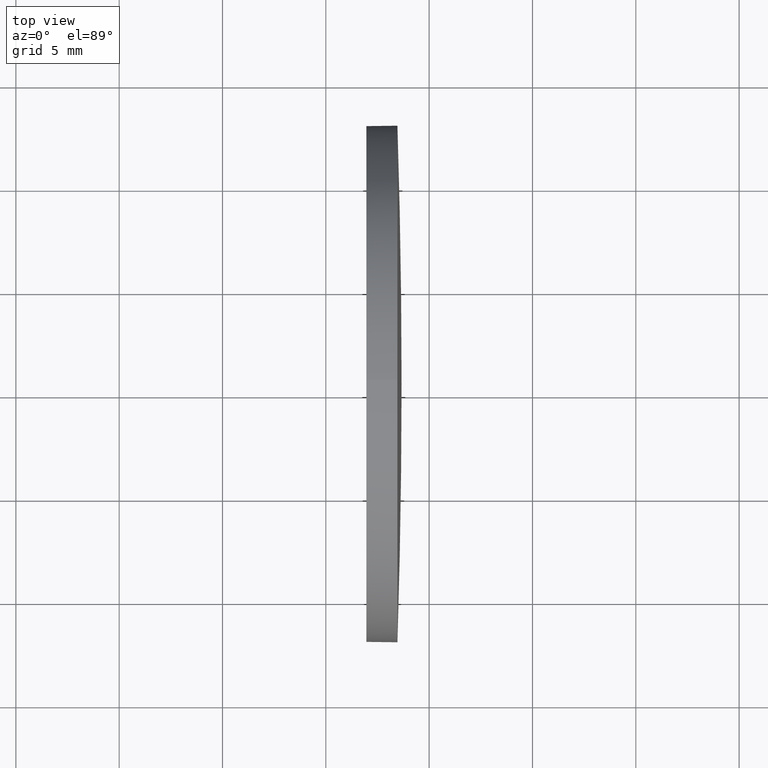
[diagram: clean part render]
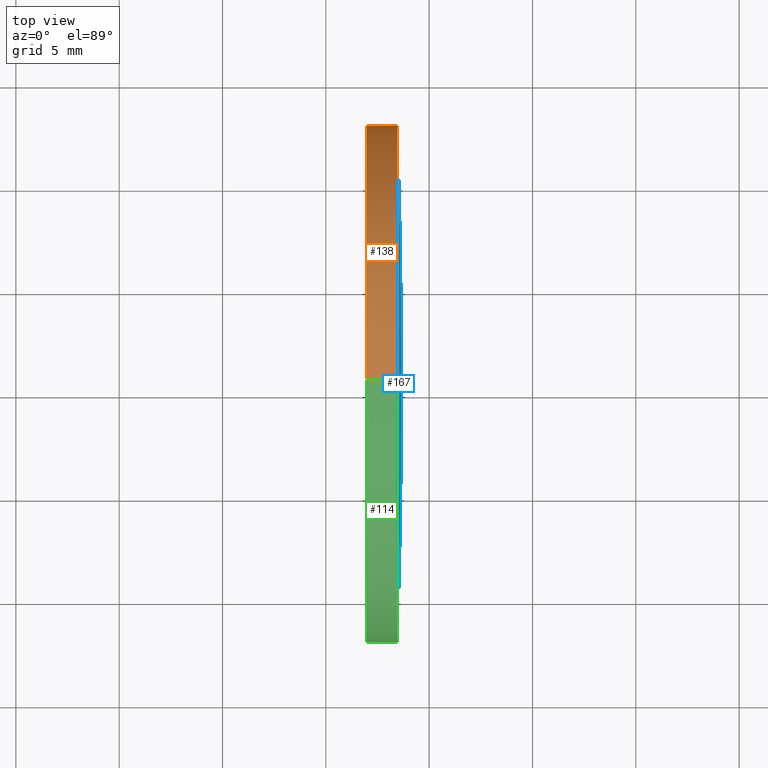
[diagram: same view with three faces highlighted in distinct colors, each labeled with its STEP entity id]
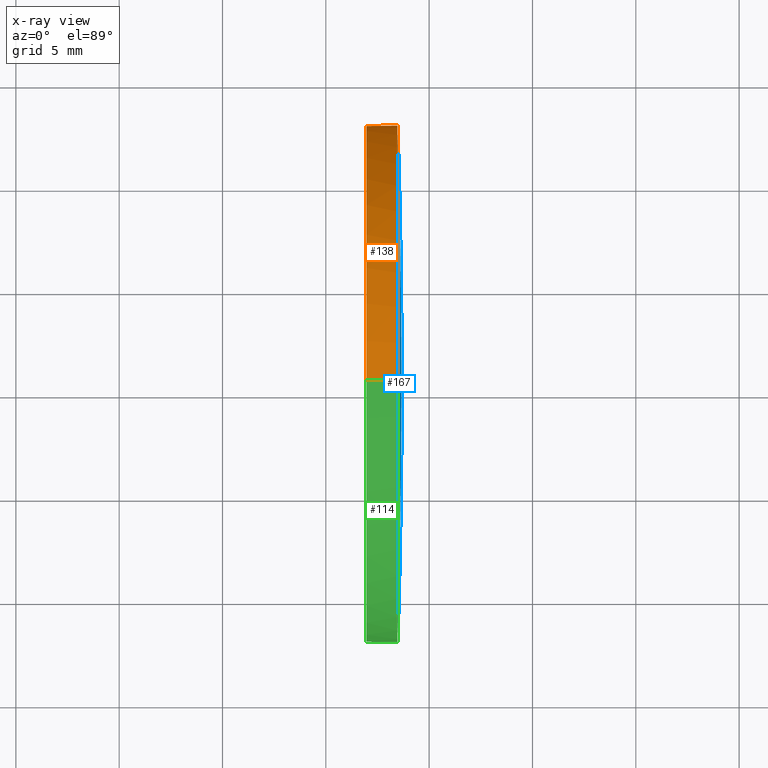
[diagram: x-ray of the same camera — body ghosted, the three highlighted faces saturated]
A machine part, top view with three faces highlighted in distinct colors.
The next image is the same camera in x-ray (body ghosted, the three faces saturated) — at least one of them is partly hidden behind the body in this view.
Their STEP definitions:

[orange] entity #138 — the highlighted cylindrical surface (partial cylindrical patch) has radius 12.5 mm, axis along (-1, -0, -0).
#2 = VERTEX_POINT ( 'NONE', #161 ) ;
#3 = CARTESIAN_POINT ( 'NONE',  ( 468.4651575666903200, 120.4458645264297700, -12.50000000000001100 ) ) ;
#11 = VECTOR ( 'NONE', #105, 1000.000000000000000 ) ;
#13 = ORIENTED_EDGE ( 'NONE', *, *, #106, .T. ) ;
#14 = AXIS2_PLACEMENT_3D ( 'NONE', #113, #126, #139 ) ;
#28 = AXIS2_PLACEMENT_3D ( 'NONE', #183, #120, #103 ) ;
#30 = VERTEX_POINT ( 'NONE', #3 ) ;
#36 = VERTEX_POINT ( 'NONE', #38 ) ;
#37 = DIRECTION ( 'NONE',  ( 0.0000000000000000000, 0.0000000000000000000, 1.000000000000000000 ) ) ;
#38 = CARTESIAN_POINT ( 'NONE',  ( 466.9651575666903200, 120.4458645264297700, 12.50000000000001100 ) ) ;
#40 = CARTESIAN_POINT ( 'NONE',  ( 464.5995416639293600, 120.4458645264297700, -12.50000000000001100 ) ) ;
#41 = EDGE_CURVE ( 'NONE', #170, #2, #86, .T. ) ;
#43 = DIRECTION ( 'NONE',  ( -1.000000000000000000, -0.0000000000000000000, -0.0000000000000000000 ) ) ;
#47 = EDGE_CURVE ( 'NONE', #170, #36, #110, .T. ) ;
#48 = AXIS2_PLACEMENT_3D ( 'NONE', #54, #127, #37 ) ;
#49 = EDGE_CURVE ( 'NONE', #36, #150, #97, .T. ) ;
#54 = CARTESIAN_POINT ( 'NONE',  ( 466.9651575666903200, 120.4458645264297700, 0.0000000000000000000 ) ) ;
#55 = DIRECTION ( 'NONE',  ( -1.000000000000000000, -0.0000000000000000000, -0.0000000000000000000 ) ) ;
#57 = CARTESIAN_POINT ( 'NONE',  ( 464.5995416639293600, 120.4458645264297700, 12.50000000000001100 ) ) ;
#69 = AXIS2_PLACEMENT_3D ( 'NONE', #104, #43, #180 ) ;
#80 = FACE_OUTER_BOUND ( 'NONE', #169, .T. ) ;
#81 = EDGE_CURVE ( 'NONE', #30, #150, #115, .T. ) ;
#86 = CIRCLE ( 'NONE', #14, 12.50000000000001100 ) ;
#91 = ORIENTED_EDGE ( 'NONE', *, *, #81, .T. ) ;
#97 = CIRCLE ( 'NONE', #48, 12.50000000000001100 ) ;
#103 = DIRECTION ( 'NONE',  ( 0.0000000000000000000, 0.0000000000000000000, 1.000000000000000000 ) ) ;
#104 = CARTESIAN_POINT ( 'NONE',  ( 464.5995416639293600, 120.4458645264297700, 0.0000000000000000000 ) ) ;
#105 = DIRECTION ( 'NONE',  ( -1.000000000000000000, -0.0000000000000000000, -0.0000000000000000000 ) ) ;
#106 = EDGE_CURVE ( 'NONE', #2, #30, #147, .T. ) ;
#110 = LINE ( 'NONE', #57, #155 ) ;
#113 = CARTESIAN_POINT ( 'NONE',  ( 468.4651575666903200, 120.4458645264297700, 0.0000000000000000000 ) ) ;
#115 = LINE ( 'NONE', #40, #11 ) ;
#120 = DIRECTION ( 'NONE',  ( -1.000000000000000000, -0.0000000000000000000, -0.0000000000000000000 ) ) ;
#126 = DIRECTION ( 'NONE',  ( -1.000000000000000000, -0.0000000000000000000, -0.0000000000000000000 ) ) ;
#127 = DIRECTION ( 'NONE',  ( -1.000000000000000000, -0.0000000000000000000, -0.0000000000000000000 ) ) ;
#136 = ORIENTED_EDGE ( 'NONE', *, *, #47, .F. ) ;
#137 = CYLINDRICAL_SURFACE ( 'NONE', #69, 12.50000000000001100 ) ;
#138 = ADVANCED_FACE ( 'NONE', ( #80 ), #137, .T. ) ;
#139 = DIRECTION ( 'NONE',  ( 0.0000000000000000000, 0.0000000000000000000, 1.000000000000000000 ) ) ;
#147 = CIRCLE ( 'NONE', #28, 12.50000000000001100 ) ;
#148 = ORIENTED_EDGE ( 'NONE', *, *, #41, .T. ) ;
#150 = VERTEX_POINT ( 'NONE', #166 ) ;
#155 = VECTOR ( 'NONE', #55, 1000.000000000000000 ) ;
#157 = ORIENTED_EDGE ( 'NONE', *, *, #49, .F. ) ;
#161 = CARTESIAN_POINT ( 'NONE',  ( 468.4651575666903800, 132.9458645264287500, 0.0000000000000000000 ) ) ;
#166 = CARTESIAN_POINT ( 'NONE',  ( 466.9651575666903200, 120.4458645264297700, -12.50000000000001100 ) ) ;
#169 = EDGE_LOOP ( 'NONE', ( #13, #91, #157, #136, #148 ) ) ;
#170 = VERTEX_POINT ( 'NONE', #181 ) ;
#180 = DIRECTION ( 'NONE',  ( 0.0000000000000000000, 0.0000000000000000000, 1.000000000000000000 ) ) ;
#181 = CARTESIAN_POINT ( 'NONE',  ( 468.4651575666903200, 120.4458645264297700, 12.50000000000001100 ) ) ;
#183 = CARTESIAN_POINT ( 'NONE',  ( 468.4651575666903200, 120.4458645264297700, 0.0000000000000000000 ) ) ;

[blue] entity #167 — the highlighted spherical surface has radius 390.725 mm.
#2 = VERTEX_POINT ( 'NONE', #161 ) ;
#6 = AXIS2_PLACEMENT_3D ( 'NONE', #62, #8, #90 ) ;
#8 = DIRECTION ( 'NONE',  ( -0.0000000000000000000, 0.0000000000000000000, -1.000000000000000000 ) ) ;
#14 = AXIS2_PLACEMENT_3D ( 'NONE', #113, #126, #139 ) ;
#18 = DIRECTION ( 'NONE',  ( -1.000000000000000000, -0.0000000000000000000, -0.0000000000000000000 ) ) ;
#19 = EDGE_CURVE ( 'NONE', #29, #170, #83, .T. ) ;
#29 = VERTEX_POINT ( 'NONE', #112 ) ;
#32 = ORIENTED_EDGE ( 'NONE', *, *, #41, .F. ) ;
#35 = CIRCLE ( 'NONE', #111, 390.7249999999944500 ) ;
#39 = DIRECTION ( 'NONE',  ( -0.0000000000000000000, 0.0000000000000000000, 1.000000000000000000 ) ) ;
#41 = EDGE_CURVE ( 'NONE', #170, #2, #86, .T. ) ;
#45 = AXIS2_PLACEMENT_3D ( 'NONE', #128, #39, #132 ) ;
#52 = EDGE_CURVE ( 'NONE', #108, #29, #35, .T. ) ;
#56 = ORIENTED_EDGE ( 'NONE', *, *, #87, .T. ) ;
#62 = CARTESIAN_POINT ( 'NONE',  ( 77.94015756669587300, 120.4458645264289900, 0.0000000000000000000 ) ) ;
#72 = DIRECTION ( 'NONE',  ( 0.0000000000000000000, 1.224646799147353200E-016, -1.000000000000000000 ) ) ;
#75 = CIRCLE ( 'NONE', #45, 390.7249999999944500 ) ;
#76 = DIRECTION ( 'NONE',  ( 0.0000000000000000000, 1.000000000000000000, 1.224646799147353200E-016 ) ) ;
#78 = CARTESIAN_POINT ( 'NONE',  ( 468.6651575666903100, 120.4458645264290200, 0.0000000000000000000 ) ) ;
#83 = CIRCLE ( 'NONE', #96, 12.50000000000001100 ) ;
#86 = CIRCLE ( 'NONE', #14, 12.50000000000001100 ) ;
#87 = EDGE_CURVE ( 'NONE', #108, #2, #75, .T. ) ;
#90 = DIRECTION ( 'NONE',  ( 0.0000000000000000000, 1.000000000000000000, 0.0000000000000000000 ) ) ;
#93 = ORIENTED_EDGE ( 'NONE', *, *, #19, .F. ) ;
#96 = AXIS2_PLACEMENT_3D ( 'NONE', #141, #18, #175 ) ;
#99 = CARTESIAN_POINT ( 'NONE',  ( 77.94015756669587300, 120.4458645264289900, 0.0000000000000000000 ) ) ;
#100 = FACE_OUTER_BOUND ( 'NONE', #184, .T. ) ;
#108 = VERTEX_POINT ( 'NONE', #78 ) ;
#111 = AXIS2_PLACEMENT_3D ( 'NONE', #99, #72, #76 ) ;
#112 = CARTESIAN_POINT ( 'NONE',  ( 468.4651575666903800, 107.9458645264300000, -1.530808498934068300E-015 ) ) ;
#113 = CARTESIAN_POINT ( 'NONE',  ( 468.4651575666903200, 120.4458645264297700, 0.0000000000000000000 ) ) ;
#122 = ORIENTED_EDGE ( 'NONE', *, *, #52, .F. ) ;
#126 = DIRECTION ( 'NONE',  ( -1.000000000000000000, -0.0000000000000000000, -0.0000000000000000000 ) ) ;
#128 = CARTESIAN_POINT ( 'NONE',  ( 77.94015756669587300, 120.4458645264289900, 0.0000000000000000000 ) ) ;
#132 = DIRECTION ( 'NONE',  ( 1.000000000000000000, 0.0000000000000000000, 0.0000000000000000000 ) ) ;
#139 = DIRECTION ( 'NONE',  ( 0.0000000000000000000, 0.0000000000000000000, 1.000000000000000000 ) ) ;
#141 = CARTESIAN_POINT ( 'NONE',  ( 468.4651575666903200, 120.4458645264297700, 0.0000000000000000000 ) ) ;
#158 = SPHERICAL_SURFACE ( 'NONE', #6, 390.7249999999944500 ) ;
#161 = CARTESIAN_POINT ( 'NONE',  ( 468.4651575666903800, 132.9458645264287500, 0.0000000000000000000 ) ) ;
#167 = ADVANCED_FACE ( 'NONE', ( #100 ), #158, .T. ) ;
#170 = VERTEX_POINT ( 'NONE', #181 ) ;
#175 = DIRECTION ( 'NONE',  ( 0.0000000000000000000, 0.0000000000000000000, 1.000000000000000000 ) ) ;
#181 = CARTESIAN_POINT ( 'NONE',  ( 468.4651575666903200, 120.4458645264297700, 12.50000000000001100 ) ) ;
#184 = EDGE_LOOP ( 'NONE', ( #122, #56, #32, #93 ) ) ;

[green] entity #114 — the highlighted cylindrical surface (partial cylindrical patch) has radius 12.5 mm, axis along (-1, -0, -0).
#1 = DIRECTION ( 'NONE',  ( 0.0000000000000000000, 0.0000000000000000000, 1.000000000000000000 ) ) ;
#3 = CARTESIAN_POINT ( 'NONE',  ( 468.4651575666903200, 120.4458645264297700, -12.50000000000001100 ) ) ;
#11 = VECTOR ( 'NONE', #105, 1000.000000000000000 ) ;
#12 = FACE_OUTER_BOUND ( 'NONE', #173, .T. ) ;
#18 = DIRECTION ( 'NONE',  ( -1.000000000000000000, -0.0000000000000000000, -0.0000000000000000000 ) ) ;
#19 = EDGE_CURVE ( 'NONE', #29, #170, #83, .T. ) ;
#21 = ORIENTED_EDGE ( 'NONE', *, *, #47, .T. ) ;
#25 = EDGE_CURVE ( 'NONE', #150, #36, #95, .T. ) ;
#29 = VERTEX_POINT ( 'NONE', #112 ) ;
#30 = VERTEX_POINT ( 'NONE', #3 ) ;
#33 = DIRECTION ( 'NONE',  ( -1.000000000000000000, -0.0000000000000000000, -0.0000000000000000000 ) ) ;
#36 = VERTEX_POINT ( 'NONE', #38 ) ;
#38 = CARTESIAN_POINT ( 'NONE',  ( 466.9651575666903200, 120.4458645264297700, 12.50000000000001100 ) ) ;
#40 = CARTESIAN_POINT ( 'NONE',  ( 464.5995416639293600, 120.4458645264297700, -12.50000000000001100 ) ) ;
#47 = EDGE_CURVE ( 'NONE', #170, #36, #110, .T. ) ;
#55 = DIRECTION ( 'NONE',  ( -1.000000000000000000, -0.0000000000000000000, -0.0000000000000000000 ) ) ;
#57 = CARTESIAN_POINT ( 'NONE',  ( 464.5995416639293600, 120.4458645264297700, 12.50000000000001100 ) ) ;
#64 = CARTESIAN_POINT ( 'NONE',  ( 464.5995416639293600, 120.4458645264297700, 0.0000000000000000000 ) ) ;
#65 = CIRCLE ( 'NONE', #130, 12.50000000000001100 ) ;
#79 = DIRECTION ( 'NONE',  ( 0.0000000000000000000, 0.0000000000000000000, 1.000000000000000000 ) ) ;
#81 = EDGE_CURVE ( 'NONE', #30, #150, #115, .T. ) ;
#83 = CIRCLE ( 'NONE', #96, 12.50000000000001100 ) ;
#84 = ORIENTED_EDGE ( 'NONE', *, *, #81, .F. ) ;
#95 = CIRCLE ( 'NONE', #156, 12.50000000000001100 ) ;
#96 = AXIS2_PLACEMENT_3D ( 'NONE', #141, #18, #175 ) ;
#105 = DIRECTION ( 'NONE',  ( -1.000000000000000000, -0.0000000000000000000, -0.0000000000000000000 ) ) ;
#110 = LINE ( 'NONE', #57, #155 ) ;
#112 = CARTESIAN_POINT ( 'NONE',  ( 468.4651575666903800, 107.9458645264300000, -1.530808498934068300E-015 ) ) ;
#114 = ADVANCED_FACE ( 'NONE', ( #12 ), #168, .T. ) ;
#115 = LINE ( 'NONE', #40, #11 ) ;
#116 = CARTESIAN_POINT ( 'NONE',  ( 466.9651575666903200, 120.4458645264297700, 0.0000000000000000000 ) ) ;
#118 = DIRECTION ( 'NONE',  ( -1.000000000000000000, -0.0000000000000000000, -0.0000000000000000000 ) ) ;
#129 = ORIENTED_EDGE ( 'NONE', *, *, #25, .F. ) ;
#130 = AXIS2_PLACEMENT_3D ( 'NONE', #154, #134, #79 ) ;
#134 = DIRECTION ( 'NONE',  ( -1.000000000000000000, -0.0000000000000000000, -0.0000000000000000000 ) ) ;
#140 = ORIENTED_EDGE ( 'NONE', *, *, #19, .T. ) ;
#141 = CARTESIAN_POINT ( 'NONE',  ( 468.4651575666903200, 120.4458645264297700, 0.0000000000000000000 ) ) ;
#150 = VERTEX_POINT ( 'NONE', #166 ) ;
#154 = CARTESIAN_POINT ( 'NONE',  ( 468.4651575666903200, 120.4458645264297700, 0.0000000000000000000 ) ) ;
#155 = VECTOR ( 'NONE', #55, 1000.000000000000000 ) ;
#156 = AXIS2_PLACEMENT_3D ( 'NONE', #116, #33, #1 ) ;
#164 = DIRECTION ( 'NONE',  ( 0.0000000000000000000, 0.0000000000000000000, 1.000000000000000000 ) ) ;
#166 = CARTESIAN_POINT ( 'NONE',  ( 466.9651575666903200, 120.4458645264297700, -12.50000000000001100 ) ) ;
#168 = CYLINDRICAL_SURFACE ( 'NONE', #179, 12.50000000000001100 ) ;
#170 = VERTEX_POINT ( 'NONE', #181 ) ;
#173 = EDGE_LOOP ( 'NONE', ( #84, #186, #140, #21, #129 ) ) ;
#174 = EDGE_CURVE ( 'NONE', #30, #29, #65, .T. ) ;
#175 = DIRECTION ( 'NONE',  ( 0.0000000000000000000, 0.0000000000000000000, 1.000000000000000000 ) ) ;
#179 = AXIS2_PLACEMENT_3D ( 'NONE', #64, #118, #164 ) ;
#181 = CARTESIAN_POINT ( 'NONE',  ( 468.4651575666903200, 120.4458645264297700, 12.50000000000001100 ) ) ;
#186 = ORIENTED_EDGE ( 'NONE', *, *, #174, .T. ) ;